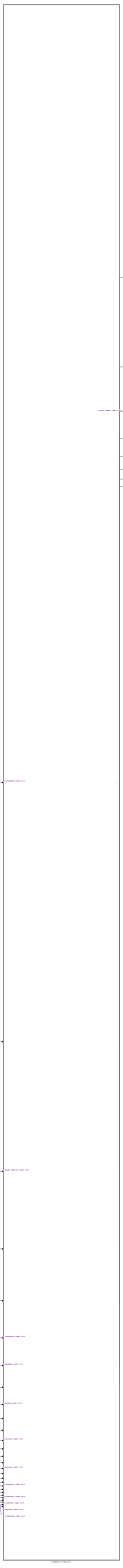
[diagram: root canvas - part 1/7, center side, full height]
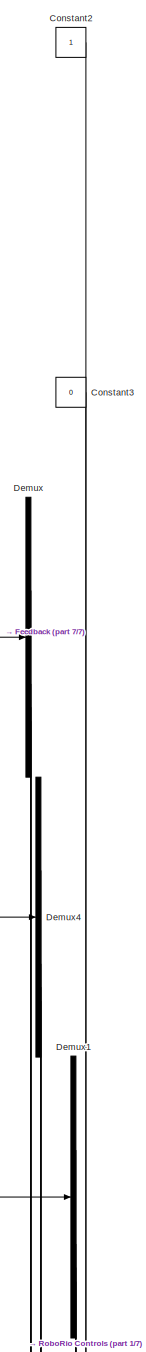
[diagram: root canvas - part 2/7, top left region]
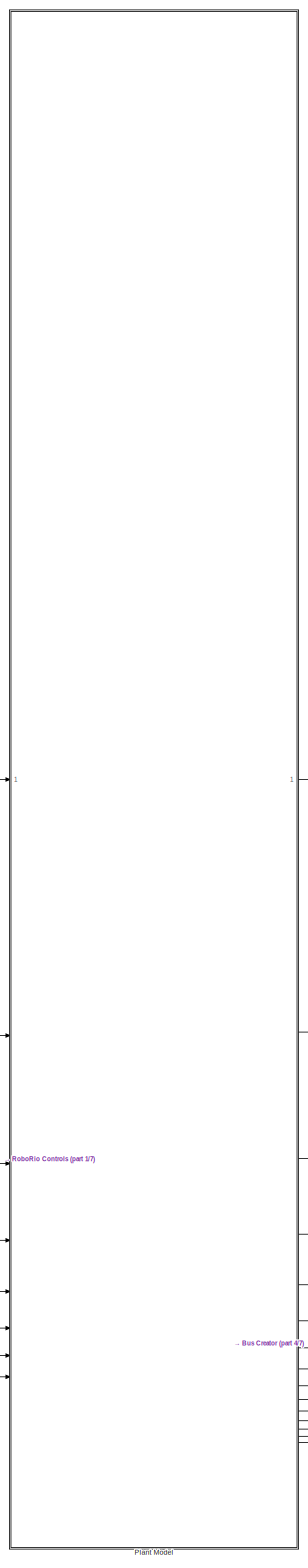
[diagram: root canvas - part 3/7, top center region]
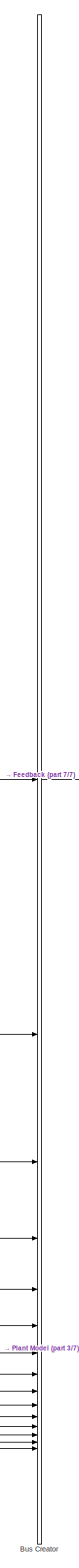
[diagram: root canvas - part 4/7, top right region]
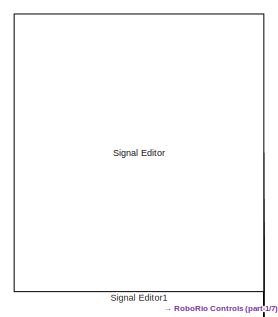
[diagram: root canvas - part 5/7, top left region]
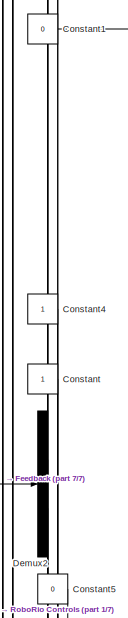
[diagram: root canvas - part 6/7, top left region]
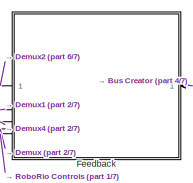
[diagram: root canvas - part 7/7, bottom center region]
MODEL slx_a7d0d7b51bc7
KIND model
CONFIG AbsTol = auto
CONFIG EnableMultiTasking = off
CONFIG FixedStep = auto
CONFIG MaxStep = auto
CONFIG MinStep = auto
CONFIG RelTol = 1e-3
CONFIG SampleTimeConstraint = Unconstrained
CONFIG SolverName = daessc
CONFIG StartTime = 0.0
CONFIG StopTime = 1
BLOCK [BusCreator] Bus Creator
  DisplayOption = bar
  InheritFromInputs = on
  Inputs = 15
BLOCK [Constant] Constant
  OutDataTypeStr = boolean
BLOCK [Constant] Constant1
  Value = 0
BLOCK [Constant] Constant2
BLOCK [Constant] Constant3
  OutDataTypeStr = boolean
  Value = 0
BLOCK [Constant] Constant4
  OutDataTypeStr = boolean
BLOCK [Constant] Constant5
  OutDataTypeStr = double
  Value = 0
BLOCK [Demux] Demux
BLOCK [Demux] Demux1
BLOCK [Demux] Demux2
  Outputs = 2
BLOCK [Demux] Demux4
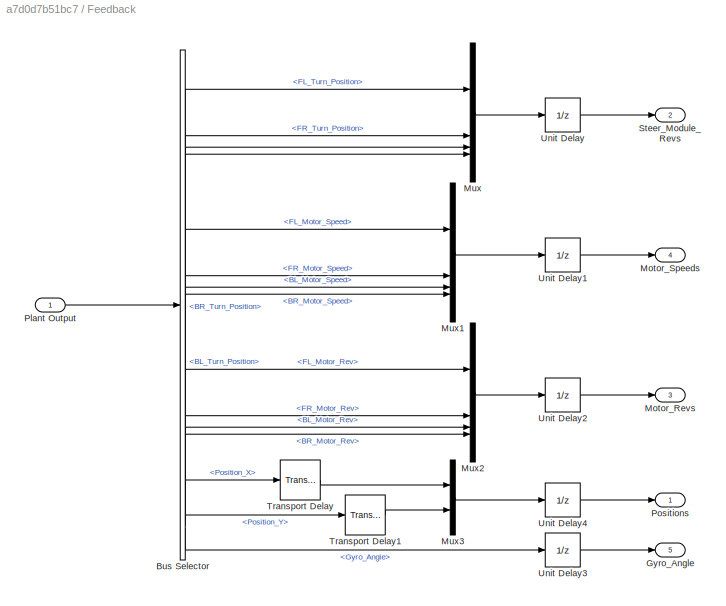
BLOCK [SubSystem] Feedback
BLOCK [BusSelector] Feedback/Bus Selector
  OutputSignals = FL_Turn_Position,FR_Turn_Position,BL_Turn_Position,BR_Turn_Position,FL_Motor_Speed,FR_Motor_Speed,BL_Motor_Speed,BR_Motor_Speed,FL_Motor_Rev,FR_Motor_Rev,BL_Motor_Rev,BR_Motor_Rev,Position_X,Position_Y,Gyro_Angle
BLOCK [Outport] Feedback/Gyro_Angle
  Port = 5
BLOCK [Outport] Feedback/Motor_Revs
  Port = 3
  Unit = rev
BLOCK [Outport] Feedback/Motor_Speeds
  Port = 4
BLOCK [Mux] Feedback/Mux
  DisplayOption = bar
BLOCK [Mux] Feedback/Mux1
  DisplayOption = bar
BLOCK [Mux] Feedback/Mux2
  DisplayOption = bar
BLOCK [Mux] Feedback/Mux3
  DisplayOption = bar
  Inputs = 2
BLOCK [Inport] Feedback/Plant Output
BLOCK [Outport] Feedback/Positions
  Unit = m
BLOCK [Outport] Feedback/Steer_Module_Revs
  Port = 2
BLOCK [TransportDelay] Feedback/Transport Delay
  DelayTime = 0.12
BLOCK [TransportDelay] Feedback/Transport Delay1
  DelayTime = 0.12
BLOCK [UnitDelay] Feedback/Unit Delay
  HasFrameUpgradeWarning = on
  InitialCondition = [0 0 0 0]
  SampleTime = t_sample
BLOCK [UnitDelay] Feedback/Unit Delay1
  HasFrameUpgradeWarning = on
  InitialCondition = [0 0 0 0]
  SampleTime = t_sample
BLOCK [UnitDelay] Feedback/Unit Delay2
  HasFrameUpgradeWarning = on
  InitialCondition = [0 0 0 0]
  SampleTime = t_sample
BLOCK [UnitDelay] Feedback/Unit Delay3
  HasFrameUpgradeWarning = on
  SampleTime = t_sample
BLOCK [UnitDelay] Feedback/Unit Delay4
  HasFrameUpgradeWarning = on
  SampleTime = t_sample
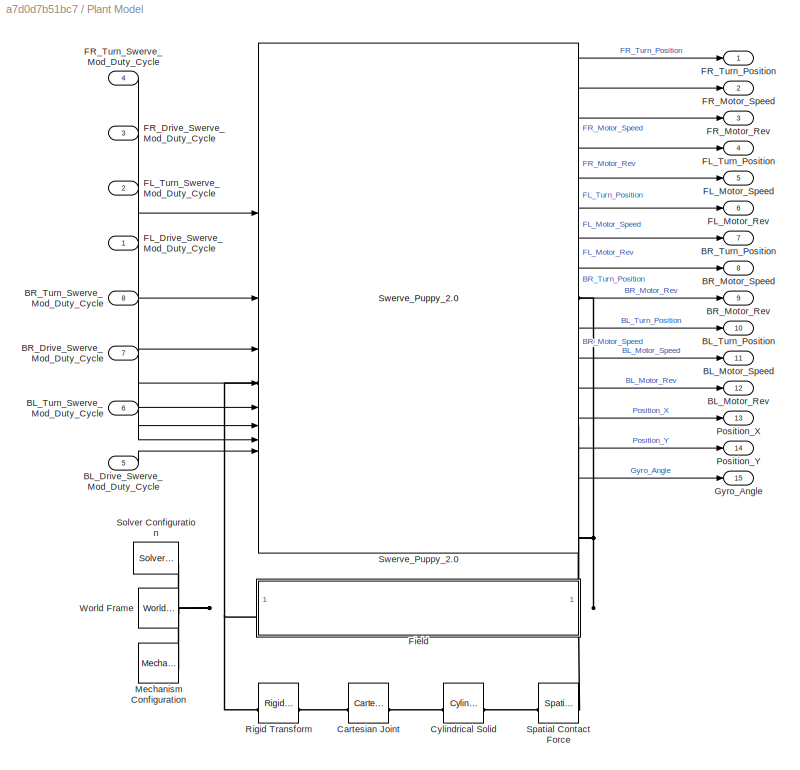
BLOCK [SubSystem] Plant Model
  AncestorBlock = Simulation_lib/Simulation_Top
BLOCK [Inport] Plant Model/BL_Drive_Swerve_Mod_Duty_Cycle
  Port = 5
BLOCK [Outport] Plant Model/BL_Motor_Rev
  Port = 12
BLOCK [Outport] Plant Model/BL_Motor_Speed
  Port = 11
BLOCK [Outport] Plant Model/BL_Turn_Position
  Port = 10
BLOCK [Inport] Plant Model/BL_Turn_Swerve_Mod_Duty_Cycle
  Port = 6
BLOCK [Inport] Plant Model/BR_Drive_Swerve_Mod_Duty_Cycle
  Port = 7
BLOCK [Outport] Plant Model/BR_Motor_Rev
  Port = 9
BLOCK [Outport] Plant Model/BR_Motor_Speed
  Port = 8
BLOCK [Outport] Plant Model/BR_Turn_Position
  Port = 7
BLOCK [Inport] Plant Model/BR_Turn_Swerve_Mod_Duty_Cycle
  Port = 8
BLOCK [Reference] Plant Model/Cartesian Joint  REF=sm_lib/Joints/Cartesian
Joint
  SourceBlock = sm_lib/Joints/Cartesian\nJoint
  SourceType = Cartesian\nJoint
BLOCK [Reference] Plant Model/Cylindrical Solid  REF=sm_lib/Body Elements/Cylindrical Solid
  NameLocation = top
  SourceBlock = sm_lib/Body Elements/Cylindrical Solid
  SourceType = Cylindrical Solid
BLOCK [Inport] Plant Model/FL_Drive_Swerve_Mod_Duty_Cycle
BLOCK [Outport] Plant Model/FL_Motor_Rev
  Port = 6
BLOCK [Outport] Plant Model/FL_Motor_Speed
  Port = 5
BLOCK [Outport] Plant Model/FL_Turn_Position
  Port = 4
BLOCK [Inport] Plant Model/FL_Turn_Swerve_Mod_Duty_Cycle
  Port = 2
BLOCK [Inport] Plant Model/FR_Drive_Swerve_Mod_Duty_Cycle
  Port = 3
BLOCK [Outport] Plant Model/FR_Motor_Rev
  Port = 3
BLOCK [Outport] Plant Model/FR_Motor_Speed
  Port = 2
BLOCK [Outport] Plant Model/FR_Turn_Position
BLOCK [Inport] Plant Model/FR_Turn_Swerve_Mod_Duty_Cycle
  Port = 4
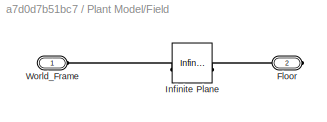
BLOCK [SubSystem] Plant Model/Field
  AncestorBlock = Simulation_lib/Field
BLOCK [PMIOPort] Plant Model/Field/Floor
  Port = 2
  Side = Right
BLOCK [Reference] Plant Model/Field/Infinite Plane  REF=sm_lib/Curves and Surfaces/Infinite Plane
  SourceBlock = sm_lib/Curves and Surfaces/Infinite Plane
  SourceType = Infinite Plane
BLOCK [PMIOPort] Plant Model/Field/World_Frame
  Side = Left
BLOCK [Outport] Plant Model/Gyro_Angle
  Port = 15
BLOCK [Reference] Plant Model/Mechanism Configuration  REF=sm_lib/Utilities/Mechanism
Configuration
  SourceBlock = sm_lib/Utilities/Mechanism\nConfiguration
  SourceType = Mechanism\nConfiguration
BLOCK [Outport] Plant Model/Position_X
  Port = 13
BLOCK [Outport] Plant Model/Position_Y
  Port = 14
BLOCK [Reference] Plant Model/Rigid Transform  REF=sm_lib/Frames and
Transforms/Rigid
Transform
  SourceBlock = sm_lib/Frames and\nTransforms/Rigid\nTransform
  SourceType = Rigid\nTransform
BLOCK [Reference] Plant Model/Solver Configuration  REF=nesl_utility/Solver
Configuration
  SourceBlock = nesl_utility/Solver\nConfiguration
  SourceType = Solver\nConfiguration
BLOCK [Reference] Plant Model/Spatial Contact Force  REF=sm_lib/Forces and
Torques/Spatial
Contact Force
  SourceBlock = sm_lib/Forces and\nTorques/Spatial\nContact Force
  SourceType = Spatial\nContact Force
BLOCK [Reference] Plant Model/Swerve_Puppy_2.0  REF=Simulation_lib/Swerve_Puppy_2.0
  SourceBlock = Simulation_lib/Swerve_Puppy_2.0
BLOCK [Reference] Plant Model/World Frame  REF=sm_lib/Frames and
Transforms/World Frame
  SourceBlock = sm_lib/Frames and\nTransforms/World Frame
  SourceType = World Frame
BLOCK [SubSystem] RoboRio Controls
  ReferencedSubsystem = RoboRio_Controls_sub
BLOCK [Reference] Signal Editor1  REF=SignalEditorBlockLib/Signal Editor
  LibrarySourceBlock = simulink/Sources/Signal Editor
  SourceBlock = SignalEditorBlockLib/Signal Editor
  SourceType = SignalEditor
  UserDataPersistent = on
LINE Bus Creator:1 -> Feedback:1
NET Constant1:1 -> RoboRio Controls:20, RoboRio Controls:21, RoboRio Controls:22, RoboRio Controls:23
LINE Constant2:1 -> RoboRio Controls:1
LINE Constant3:1 -> RoboRio Controls:6
LINE Constant4:1 -> RoboRio Controls:24
LINE Constant5:1 -> RoboRio Controls:28
LINE Constant:1 -> RoboRio Controls:25
LINE Demux1:1 -> RoboRio Controls:16
LINE Demux1:2 -> RoboRio Controls:17
LINE Demux1:3 -> RoboRio Controls:18
LINE Demux1:4 -> RoboRio Controls:19
LINE Demux2:1 -> RoboRio Controls:26
LINE Demux2:2 -> RoboRio Controls:27
LINE Demux4:1 -> RoboRio Controls:12
LINE Demux4:2 -> RoboRio Controls:13
LINE Demux4:3 -> RoboRio Controls:14
LINE Demux4:4 -> RoboRio Controls:15
LINE Demux:1 -> RoboRio Controls:8
LINE Demux:2 -> RoboRio Controls:9
LINE Demux:3 -> RoboRio Controls:10
LINE Demux:4 -> RoboRio Controls:11
LINE Feedback/Bus Selector:1 -> Feedback/Mux:1
LINE Feedback/Bus Selector:10 -> Feedback/Mux2:2
LINE Feedback/Bus Selector:11 -> Feedback/Mux2:3
LINE Feedback/Bus Selector:12 -> Feedback/Mux2:4
LINE Feedback/Bus Selector:13 -> Feedback/Transport Delay:1
LINE Feedback/Bus Selector:14 -> Feedback/Transport Delay1:1
LINE Feedback/Bus Selector:15 -> Feedback/Unit Delay3:1
LINE Feedback/Bus Selector:2 -> Feedback/Mux:2
LINE Feedback/Bus Selector:3 -> Feedback/Mux:3
LINE Feedback/Bus Selector:4 -> Feedback/Mux:4
LINE Feedback/Bus Selector:5 -> Feedback/Mux1:1
LINE Feedback/Bus Selector:6 -> Feedback/Mux1:2
LINE Feedback/Bus Selector:7 -> Feedback/Mux1:3
LINE Feedback/Bus Selector:8 -> Feedback/Mux1:4
LINE Feedback/Bus Selector:9 -> Feedback/Mux2:1
LINE Feedback/Mux1:1 -> Feedback/Unit Delay1:1
LINE Feedback/Mux2:1 -> Feedback/Unit Delay2:1
LINE Feedback/Mux3:1 -> Feedback/Unit Delay4:1
LINE Feedback/Mux:1 -> Feedback/Unit Delay:1
LINE Feedback/Plant Output:1 -> Feedback/Bus Selector:1
LINE Feedback/Transport Delay1:1 -> Feedback/Mux3:2
LINE Feedback/Transport Delay:1 -> Feedback/Mux3:1
LINE Feedback/Unit Delay1:1 -> Feedback/Motor_Speeds:1
LINE Feedback/Unit Delay2:1 -> Feedback/Motor_Revs:1
LINE Feedback/Unit Delay3:1 -> Feedback/Gyro_Angle:1
LINE Feedback/Unit Delay4:1 -> Feedback/Positions:1
LINE Feedback/Unit Delay:1 -> Feedback/Steer_Module_Revs:1
LINE Feedback:1 -> Demux2:1
LINE Feedback:2 -> Demux1:1
LINE Feedback:3 -> Demux4:1
LINE Feedback:4 -> Demux:1
LINE Feedback:5 -> RoboRio Controls:7
LINE Plant Model:1 -> Bus Creator:1
LINE Plant Model:10 -> Bus Creator:10
LINE Plant Model:11 -> Bus Creator:11
LINE Plant Model:12 -> Bus Creator:12
LINE Plant Model:13 -> Bus Creator:13
LINE Plant Model:14 -> Bus Creator:14
LINE Plant Model:15 -> Bus Creator:15
LINE Plant Model:2 -> Bus Creator:2
LINE Plant Model:3 -> Bus Creator:3
LINE Plant Model:4 -> Bus Creator:4
LINE Plant Model:5 -> Bus Creator:5
LINE Plant Model:6 -> Bus Creator:6
LINE Plant Model:7 -> Bus Creator:7
LINE Plant Model:8 -> Bus Creator:8
LINE Plant Model:9 -> Bus Creator:9
LINE RoboRio Controls:1 -> Plant Model:1
LINE RoboRio Controls:2 -> Plant Model:2
LINE RoboRio Controls:3 -> Plant Model:3
LINE RoboRio Controls:4 -> Plant Model:4
LINE RoboRio Controls:5 -> Plant Model:5
LINE RoboRio Controls:6 -> Plant Model:6
LINE RoboRio Controls:7 -> Plant Model:7
LINE RoboRio Controls:8 -> Plant Model:8
LINE Signal Editor1:1 -> RoboRio Controls:2
LINE Signal Editor1:2 -> RoboRio Controls:3
LINE Signal Editor1:3 -> RoboRio Controls:4
LINE Signal Editor1:4 -> RoboRio Controls:5
note: NET lines group one-source signal fan-out (src -> all destinations, sorted); 1:1 wires keep LINE
